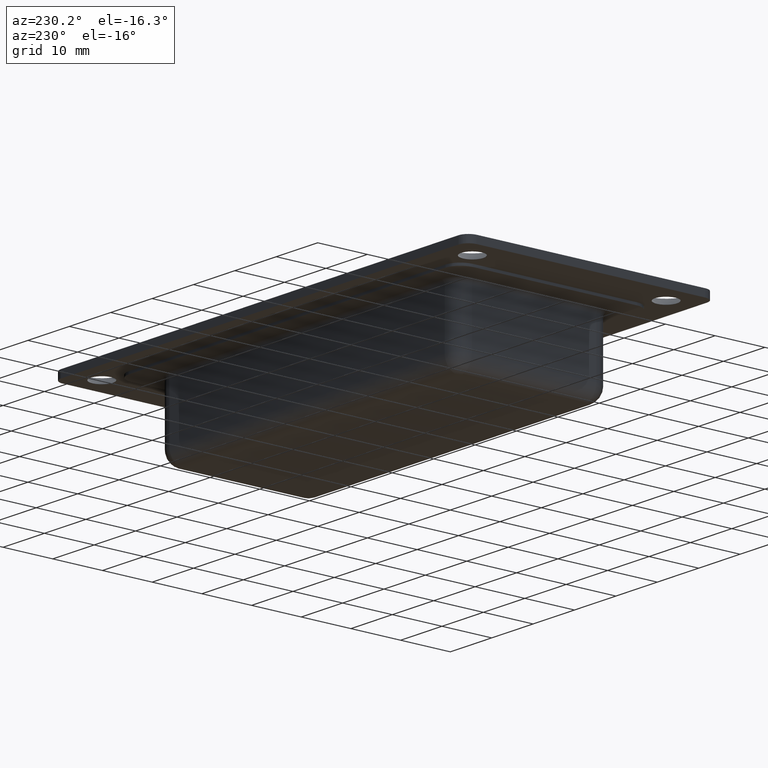
[diagram: clean part render]
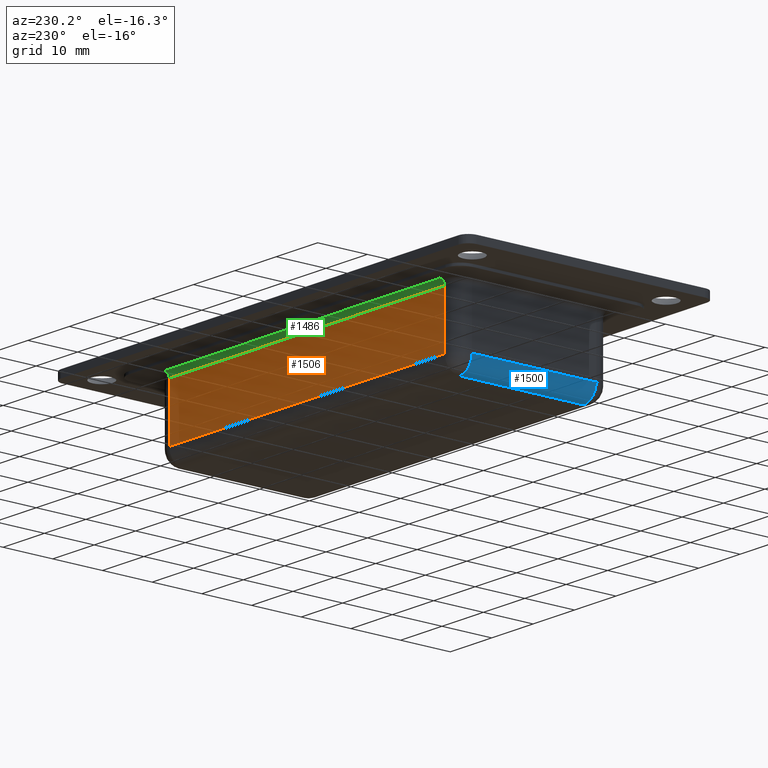
[diagram: same view with three faces highlighted in distinct colors, each labeled with its STEP entity id]
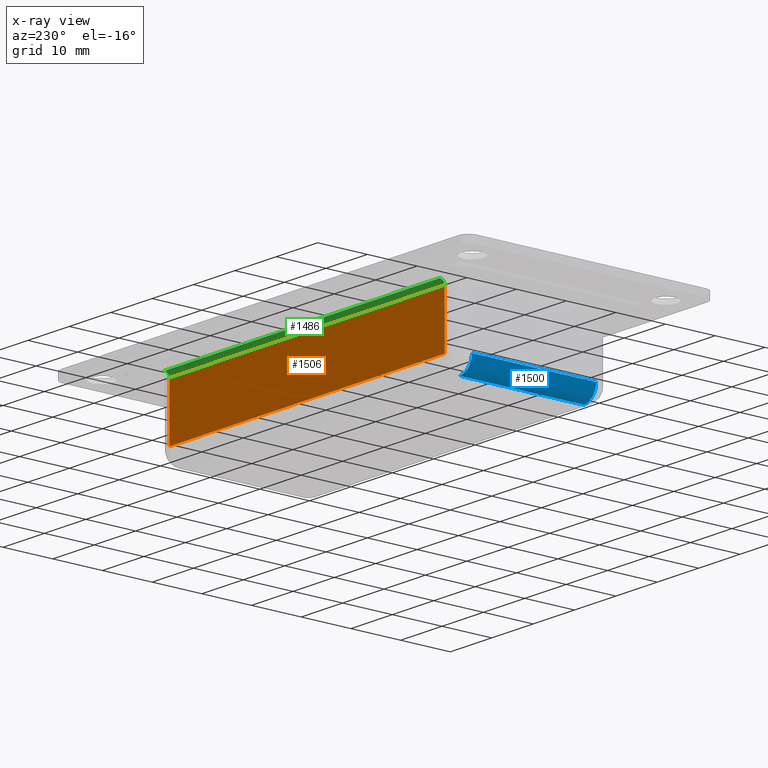
[diagram: x-ray of the same camera — body ghosted, the three highlighted faces saturated]
A machine part, auxiliary view with three faces highlighted in distinct colors.
The next image is the same camera in x-ray (body ghosted, the three faces saturated) — at least one of them is partly hidden behind the body in this view.
Their STEP definitions:

[orange] entity #1506 — the highlighted planar face has unit normal (0, 1, 0).
#186=LINE('',#2756,#294);
#196=LINE('',#2795,#304);
#199=LINE('',#2810,#307);
#203=LINE('',#2830,#311);
#294=VECTOR('',#2080,66.5);
#304=VECTOR('',#2128,11.);
#307=VECTOR('',#2143,66.5);
#311=VECTOR('',#2177,11.);
#342=PLANE('',#1697);
#434=FACE_OUTER_BOUND('',#548,.T.);
#548=EDGE_LOOP('',(#1395,#1396,#1397,#1398));
#766=VERTEX_POINT('',#2750);
#767=VERTEX_POINT('',#2754);
#777=VERTEX_POINT('',#2794);
#783=VERTEX_POINT('',#2809);
#955=EDGE_CURVE('',#767,#766,#186,.T.);
#974=EDGE_CURVE('',#766,#777,#196,.T.);
#981=EDGE_CURVE('',#777,#783,#199,.T.);
#992=EDGE_CURVE('',#783,#767,#203,.T.);
#1395=ORIENTED_EDGE('',*,*,#955,.F.);
#1396=ORIENTED_EDGE('',*,*,#992,.F.);
#1397=ORIENTED_EDGE('',*,*,#981,.F.);
#1398=ORIENTED_EDGE('',*,*,#974,.F.);
#1506=ADVANCED_FACE('',(#434),#342,.T.);
#1697=AXIS2_PLACEMENT_3D('',#2829,#2175,#2176);
#2080=DIRECTION('',(-1.,0.,0.));
#2128=DIRECTION('',(0.,0.,-1.));
#2143=DIRECTION('',(1.,0.,0.));
#2175=DIRECTION('center_axis',(0.,1.,0.));
#2176=DIRECTION('ref_axis',(-1.,0.,0.));
#2177=DIRECTION('',(0.,0.,1.));
#2750=CARTESIAN_POINT('',(-33.25,15.5,-1.5));
#2754=CARTESIAN_POINT('',(33.25,15.5,-1.5));
#2756=CARTESIAN_POINT('',(18.125,15.5,-1.5));
#2794=CARTESIAN_POINT('',(-33.25,15.5,-12.5));
#2795=CARTESIAN_POINT('',(-33.25,15.5,-15.5));
#2809=CARTESIAN_POINT('',(33.25,15.5,-12.5));
#2810=CARTESIAN_POINT('',(18.125,15.5,-12.5));
#2829=CARTESIAN_POINT('Origin',(36.25,15.5,-15.5));
#2830=CARTESIAN_POINT('',(33.25,15.5,-15.5));

[blue] entity #1500 — the highlighted cylindrical surface (edge-blend (fillet) strip) has radius 3 mm, axis along (-0, 1, 0).
#94=CYLINDRICAL_SURFACE('',#1686,3.);
#195=LINE('',#2792,#303);
#201=LINE('',#2819,#309);
#303=VECTOR('',#2125,25.);
#309=VECTOR('',#2157,25.);
#428=FACE_OUTER_BOUND('',#542,.T.);
#542=EDGE_LOOP('',(#1374,#1375,#1376,#1377));
#644=CIRCLE('',#1687,3.);
#645=CIRCLE('',#1688,3.);
#775=VERTEX_POINT('',#2786);
#776=VERTEX_POINT('',#2790);
#782=VERTEX_POINT('',#2807);
#784=VERTEX_POINT('',#2816);
#973=EDGE_CURVE('',#775,#776,#195,.T.);
#985=EDGE_CURVE('',#784,#775,#644,.T.);
#986=EDGE_CURVE('',#776,#782,#645,.T.);
#987=EDGE_CURVE('',#782,#784,#201,.T.);
#1374=ORIENTED_EDGE('',*,*,#985,.T.);
#1375=ORIENTED_EDGE('',*,*,#973,.T.);
#1376=ORIENTED_EDGE('',*,*,#986,.T.);
#1377=ORIENTED_EDGE('',*,*,#987,.T.);
#1500=ADVANCED_FACE('',(#428),#94,.T.);
#1686=AXIS2_PLACEMENT_3D('',#2815,#2151,#2152);
#1687=AXIS2_PLACEMENT_3D('',#2817,#2153,#2154);
#1688=AXIS2_PLACEMENT_3D('',#2818,#2155,#2156);
#2125=DIRECTION('',(-2.86509167645202E-16,1.,0.));
#2151=DIRECTION('center_axis',(-2.86509167645202E-16,1.,0.));
#2152=DIRECTION('ref_axis',(-0.707106781186547,-5.23364152894592E-16,-0.707106781186547));
#2153=DIRECTION('center_axis',(-7.40148683083439E-16,1.,0.));
#2154=DIRECTION('ref_axis',(0.,0.,-1.));
#2155=DIRECTION('center_axis',(0.,-1.,0.));
#2156=DIRECTION('ref_axis',(-1.,0.,0.));
#2157=DIRECTION('',(2.86509167645202E-16,-1.,0.));
#2786=CARTESIAN_POINT('',(-36.25,-12.5,-12.5));
#2790=CARTESIAN_POINT('',(-36.25,12.5,-12.5));
#2792=CARTESIAN_POINT('',(-36.25,7.75,-12.5));
#2807=CARTESIAN_POINT('',(-33.25,12.5,-15.5));
#2815=CARTESIAN_POINT('Origin',(-33.25,7.75,-12.5));
#2816=CARTESIAN_POINT('',(-33.25,-12.5,-15.5));
#2817=CARTESIAN_POINT('Origin',(-33.25,-12.5,-12.5));
#2818=CARTESIAN_POINT('Origin',(-33.25,12.5,-12.5));
#2819=CARTESIAN_POINT('',(-33.25,7.75,-15.5));

[green] entity #1486 — the highlighted cylindrical surface (edge-blend (fillet) strip) has radius 1 mm, axis along (-1, 0, 0).
#86=CYLINDRICAL_SURFACE('',#1656,1.);
#180=LINE('',#2736,#288);
#186=LINE('',#2756,#294);
#288=VECTOR('',#2052,66.5);
#294=VECTOR('',#2080,66.5);
#414=FACE_OUTER_BOUND('',#528,.T.);
#528=EDGE_LOOP('',(#1319,#1320,#1321,#1322));
#626=CIRCLE('',#1654,0.999999999999999);
#628=CIRCLE('',#1657,0.999999999999999);
#758=VERTEX_POINT('',#2722);
#764=VERTEX_POINT('',#2734);
#766=VERTEX_POINT('',#2750);
#767=VERTEX_POINT('',#2754);
#945=EDGE_CURVE('',#758,#764,#180,.T.);
#952=EDGE_CURVE('',#758,#766,#626,.T.);
#954=EDGE_CURVE('',#764,#767,#628,.T.);
#955=EDGE_CURVE('',#767,#766,#186,.T.);
#1319=ORIENTED_EDGE('',*,*,#954,.T.);
#1320=ORIENTED_EDGE('',*,*,#955,.T.);
#1321=ORIENTED_EDGE('',*,*,#952,.F.);
#1322=ORIENTED_EDGE('',*,*,#945,.T.);
#1486=ADVANCED_FACE('',(#414),#86,.F.);
#1654=AXIS2_PLACEMENT_3D('',#2751,#2072,#2073);
#1656=AXIS2_PLACEMENT_3D('',#2753,#2076,#2077);
#1657=AXIS2_PLACEMENT_3D('',#2755,#2078,#2079);
#2052=DIRECTION('',(1.,0.,0.));
#2072=DIRECTION('center_axis',(1.,0.,0.));
#2073=DIRECTION('ref_axis',(0.,0.,1.));
#2076=DIRECTION('center_axis',(-1.,0.,0.));
#2077=DIRECTION('ref_axis',(0.,-0.707106781186548,0.707106781186547));
#2078=DIRECTION('center_axis',(1.,0.,0.));
#2079=DIRECTION('ref_axis',(0.,0.,1.));
#2080=DIRECTION('',(-1.,0.,0.));
#2722=CARTESIAN_POINT('',(-33.25,16.5,-0.5));
#2734=CARTESIAN_POINT('',(33.25,16.5,-0.5));
#2736=CARTESIAN_POINT('',(18.125,16.5,-0.5));
#2750=CARTESIAN_POINT('',(-33.25,15.5,-1.5));
#2751=CARTESIAN_POINT('Origin',(-33.25,16.5,-1.5));
#2753=CARTESIAN_POINT('Origin',(18.125,16.5,-1.5));
#2754=CARTESIAN_POINT('',(33.25,15.5,-1.5));
#2755=CARTESIAN_POINT('Origin',(33.25,16.5,-1.5));
#2756=CARTESIAN_POINT('',(18.125,15.5,-1.5));